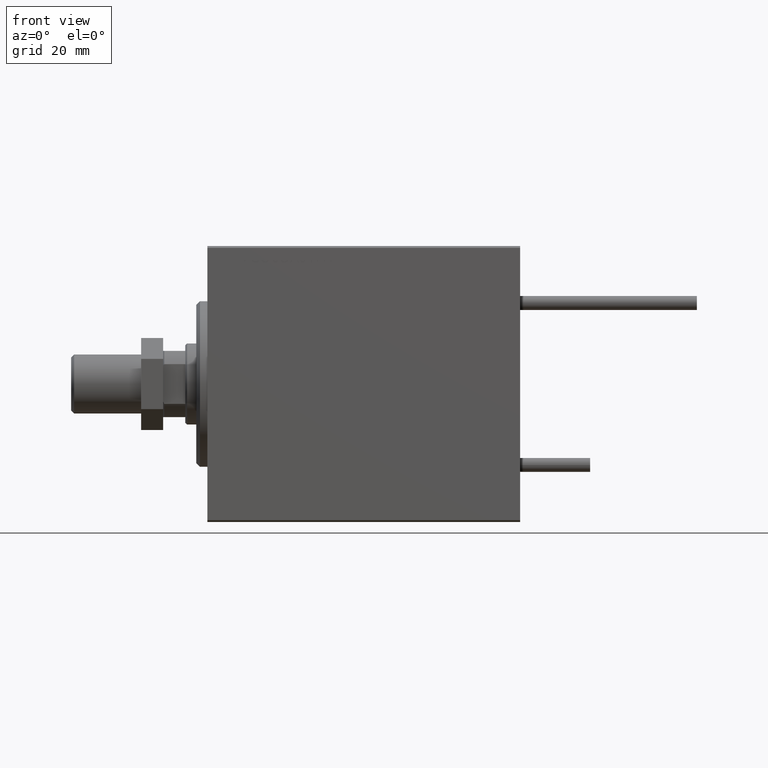
[diagram: clean part render]
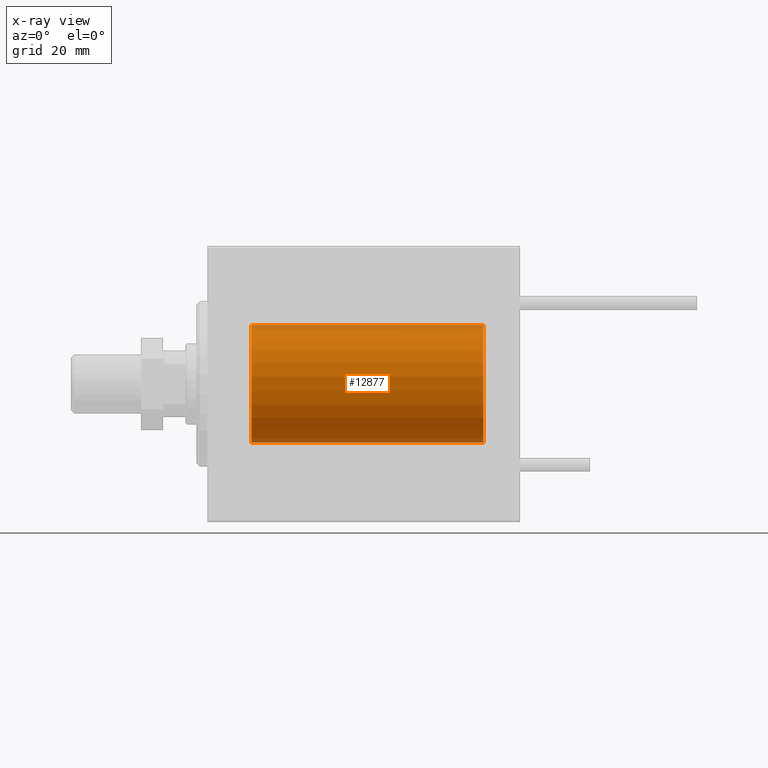
[diagram: x-ray — body ghosted, one internal face saturated and labeled with its STEP entity id]
A machine part, front view, then the same camera in x-ray: the body is ghosted and one INTERNAL B-rep face — a face not visible from any outside direction — is saturated and labeled: STEP entity #12877.
In plain terms, the highlighted cylindrical surface (partial cylindrical patch) has radius 16 mm, axis along (-1, -0, -0).
Its self-contained STEP definition (entity closure, byte-faithful):
#1983 = CARTESIAN_POINT ( 'NONE',  ( 11.99999999999999645, 1.959434878635765131E-15, -16.00000000000000000 ) ) ;
#2888 = AXIS2_PLACEMENT_3D ( 'NONE', #18569, #26363, #25599 ) ;
#3285 = FACE_OUTER_BOUND ( 'NONE', #7419, .T. ) ;
#3705 = DIRECTION ( 'NONE',  ( -1.000000000000000000, -0.000000000000000000, -0.000000000000000000 ) ) ;
#7419 = EDGE_LOOP ( 'NONE', ( #51333, #43158, #12703, #26508 ) ) ;
#7431 = DIRECTION ( 'NONE',  ( -1.000000000000000000, -0.000000000000000000, -0.000000000000000000 ) ) ;
#10862 = DIRECTION ( 'NONE',  ( 0.000000000000000000, 0.000000000000000000, 1.000000000000000000 ) ) ;
#11621 = CYLINDRICAL_SURFACE ( 'NONE', #24855, 16.00000000000000000 ) ;
#12703 = ORIENTED_EDGE ( 'NONE', *, *, #17256, .T. ) ;
#12877 = ADVANCED_FACE ( 'NONE', ( #3285 ), #11621, .F. ) ;
#13398 = CIRCLE ( 'NONE', #16750, 16.00000000000000000 ) ;
#15600 = EDGE_CURVE ( 'NONE', #22702, #22416, #27395, .T. ) ;
#16750 = AXIS2_PLACEMENT_3D ( 'NONE', #27066, #46855, #31476 ) ;
#17256 = EDGE_CURVE ( 'NONE', #48114, #22416, #13398, .T. ) ;
#18569 = CARTESIAN_POINT ( 'NONE',  ( 75.00000000000000000, 0.000000000000000000, 0.000000000000000000 ) ) ;
#21240 = LINE ( 'NONE', #33473, #46753 ) ;
#22416 = VERTEX_POINT ( 'NONE', #25927 ) ;
#22702 = VERTEX_POINT ( 'NONE', #48263 ) ;
#24855 = AXIS2_PLACEMENT_3D ( 'NONE', #46521, #7431, #10862 ) ;
#25599 = DIRECTION ( 'NONE',  ( 0.000000000000000000, 0.000000000000000000, 1.000000000000000000 ) ) ;
#25927 = CARTESIAN_POINT ( 'NONE',  ( 11.99999999999999645, 0.000000000000000000, 16.00000000000000000 ) ) ;
#26363 = DIRECTION ( 'NONE',  ( -1.000000000000000000, 0.000000000000000000, 0.000000000000000000 ) ) ;
#26508 = ORIENTED_EDGE ( 'NONE', *, *, #15600, .F. ) ;
#27066 = CARTESIAN_POINT ( 'NONE',  ( 11.99999999999999645, 0.000000000000000000, 0.000000000000000000 ) ) ;
#27160 = VERTEX_POINT ( 'NONE', #40267 ) ;
#27395 = LINE ( 'NONE', #43270, #48234 ) ;
#29706 = EDGE_CURVE ( 'NONE', #27160, #22702, #32846, .T. ) ;
#31476 = DIRECTION ( 'NONE',  ( 0.000000000000000000, 0.000000000000000000, 1.000000000000000000 ) ) ;
#32846 = CIRCLE ( 'NONE', #2888, 16.00000000000000000 ) ;
#33473 = CARTESIAN_POINT ( 'NONE',  ( 75.00000000000000000, 1.959434878635765131E-15, -16.00000000000000000 ) ) ;
#37117 = DIRECTION ( 'NONE',  ( -1.000000000000000000, -0.000000000000000000, -0.000000000000000000 ) ) ;
#40267 = CARTESIAN_POINT ( 'NONE',  ( 75.00000000000000000, 1.959434878635765131E-15, -16.00000000000000000 ) ) ;
#40934 = EDGE_CURVE ( 'NONE', #27160, #48114, #21240, .T. ) ;
#43158 = ORIENTED_EDGE ( 'NONE', *, *, #40934, .T. ) ;
#43270 = CARTESIAN_POINT ( 'NONE',  ( 75.00000000000000000, 0.000000000000000000, 16.00000000000000000 ) ) ;
#46521 = CARTESIAN_POINT ( 'NONE',  ( 75.00000000000000000, 0.000000000000000000, 0.000000000000000000 ) ) ;
#46753 = VECTOR ( 'NONE', #37117, 1000.000000000000000 ) ;
#46855 = DIRECTION ( 'NONE',  ( -1.000000000000000000, 0.000000000000000000, 0.000000000000000000 ) ) ;
#48114 = VERTEX_POINT ( 'NONE', #1983 ) ;
#48234 = VECTOR ( 'NONE', #3705, 1000.000000000000000 ) ;
#48263 = CARTESIAN_POINT ( 'NONE',  ( 75.00000000000000000, 0.000000000000000000, 16.00000000000000000 ) ) ;
#51333 = ORIENTED_EDGE ( 'NONE', *, *, #29706, .F. ) ;